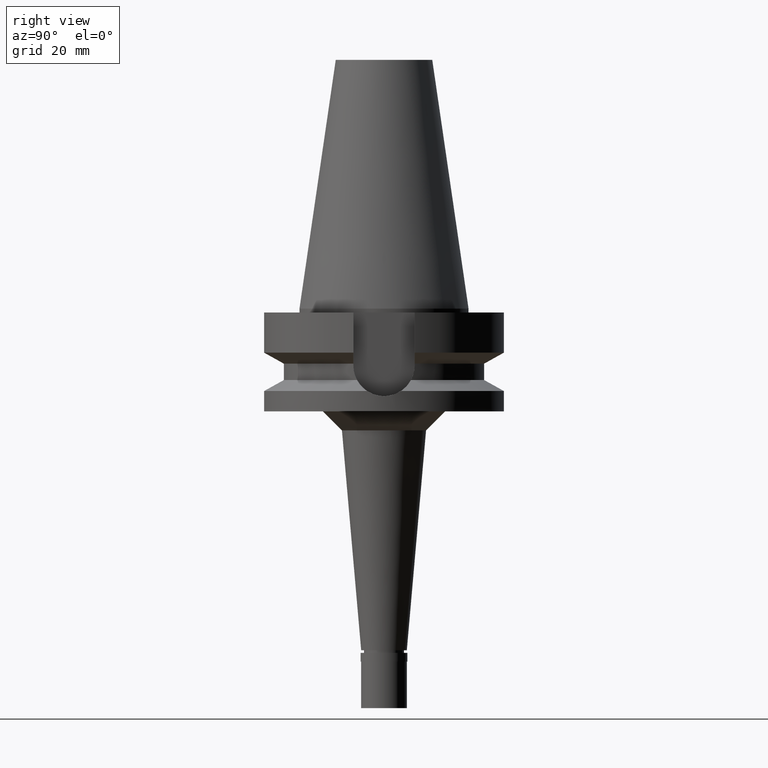
[diagram: clean part render]
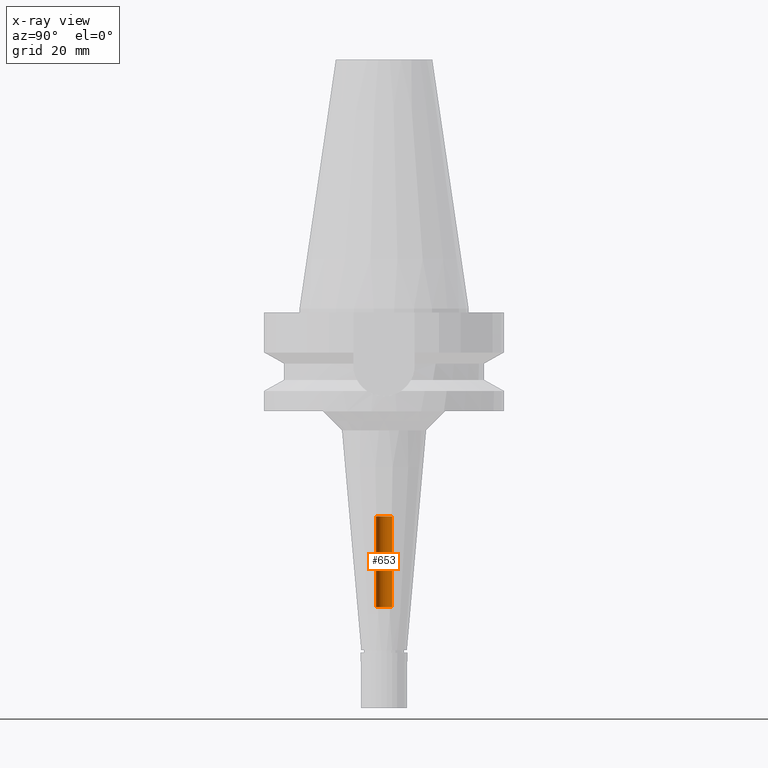
[diagram: x-ray — body ghosted, one internal face saturated and labeled with its STEP entity id]
A machine part, right view, then the same camera in x-ray: the body is ghosted and one INTERNAL B-rep face — a face not visible from any outside direction — is saturated and labeled: STEP entity #653.
In plain terms, the highlighted cylindrical surface (edge-blend (fillet) strip) has radius 2.1 mm, axis along (0, 0, -1).
Its self-contained STEP definition (entity closure, byte-faithful):
#80 = EDGE_LOOP ( 'NONE', ( #1496, #870, #874, #1869 ) ) ;
#134 = CYLINDRICAL_SURFACE ( 'NONE', #2029, 2.100000000000000089 ) ;
#211 = LINE ( 'NONE', #1113, #1783 ) ;
#343 = DIRECTION ( 'NONE',  ( 0.0000000000000000000, 0.0000000000000000000, 1.000000000000000000 ) ) ;
#374 = DIRECTION ( 'NONE',  ( 0.0000000000000000000, -1.000000000000000000, 0.0000000000000000000 ) ) ;
#476 = AXIS2_PLACEMENT_3D ( 'NONE', #1024, #343, #1490 ) ;
#607 = EDGE_CURVE ( 'NONE', #2523, #1244, #615, .T. ) ;
#615 = CIRCLE ( 'NONE', #476, 2.100000000000000089 ) ;
#653 = ADVANCED_FACE ( 'NONE', ( #794 ), #134, .F. ) ;
#794 = FACE_OUTER_BOUND ( 'NONE', #80, .T. ) ;
#810 = CARTESIAN_POINT ( 'NONE',  ( 0.0000000000000000000, 2.100000000000000089, -78.50000000000000000 ) ) ;
#870 = ORIENTED_EDGE ( 'NONE', *, *, #1162, .F. ) ;
#874 = ORIENTED_EDGE ( 'NONE', *, *, #2640, .T. ) ;
#911 = CARTESIAN_POINT ( 'NONE',  ( 0.0000000000000000000, 2.127456419478999887E-14, -78.50000000000000000 ) ) ;
#1012 = DIRECTION ( 'NONE',  ( 0.0000000000000000000, 0.0000000000000000000, -1.000000000000000000 ) ) ;
#1013 = CARTESIAN_POINT ( 'NONE',  ( 0.0000000000000000000, 2.100000000000000089, -78.50000000000000000 ) ) ;
#1024 = CARTESIAN_POINT ( 'NONE',  ( 0.0000000000000000000, 2.127456419478999887E-14, -54.60000000000000142 ) ) ;
#1113 = CARTESIAN_POINT ( 'NONE',  ( 0.0000000000000000000, -2.100000000000000089, -78.50000000000000000 ) ) ;
#1162 = EDGE_CURVE ( 'NONE', #1982, #1244, #211, .T. ) ;
#1214 = CARTESIAN_POINT ( 'NONE',  ( 0.0000000000000000000, -2.100000000000000089, -54.60000000000000142 ) ) ;
#1244 = VERTEX_POINT ( 'NONE', #1214 ) ;
#1490 = DIRECTION ( 'NONE',  ( 0.0000000000000000000, 1.000000000000000000, 0.0000000000000000000 ) ) ;
#1496 = ORIENTED_EDGE ( 'NONE', *, *, #607, .T. ) ;
#1580 = DIRECTION ( 'NONE',  ( 0.0000000000000000000, -1.000000000000000000, 0.0000000000000000000 ) ) ;
#1645 = DIRECTION ( 'NONE',  ( 0.0000000000000000000, 0.0000000000000000000, -1.000000000000000000 ) ) ;
#1718 = LINE ( 'NONE', #810, #1974 ) ;
#1783 = VECTOR ( 'NONE', #2052, 1000.000000000000000 ) ;
#1860 = CARTESIAN_POINT ( 'NONE',  ( 0.0000000000000000000, -2.100000000000000089, -78.50000000000000000 ) ) ;
#1869 = ORIENTED_EDGE ( 'NONE', *, *, #2108, .T. ) ;
#1974 = VECTOR ( 'NONE', #2443, 1000.000000000000000 ) ;
#1982 = VERTEX_POINT ( 'NONE', #1860 ) ;
#2029 = AXIS2_PLACEMENT_3D ( 'NONE', #2677, #1012, #374 ) ;
#2052 = DIRECTION ( 'NONE',  ( 0.0000000000000000000, 0.0000000000000000000, 1.000000000000000000 ) ) ;
#2074 = VERTEX_POINT ( 'NONE', #1013 ) ;
#2108 = EDGE_CURVE ( 'NONE', #2074, #2523, #1718, .T. ) ;
#2443 = DIRECTION ( 'NONE',  ( 0.0000000000000000000, 0.0000000000000000000, 1.000000000000000000 ) ) ;
#2523 = VERTEX_POINT ( 'NONE', #2699 ) ;
#2640 = EDGE_CURVE ( 'NONE', #1982, #2074, #2683, .T. ) ;
#2677 = CARTESIAN_POINT ( 'NONE',  ( 0.0000000000000000000, 2.127456419478999887E-14, 73.71999999999999886 ) ) ;
#2683 = CIRCLE ( 'NONE', #2915, 2.100000000000000089 ) ;
#2699 = CARTESIAN_POINT ( 'NONE',  ( 0.0000000000000000000, 2.100000000000000089, -54.60000000000000142 ) ) ;
#2915 = AXIS2_PLACEMENT_3D ( 'NONE', #911, #1645, #1580 ) ;